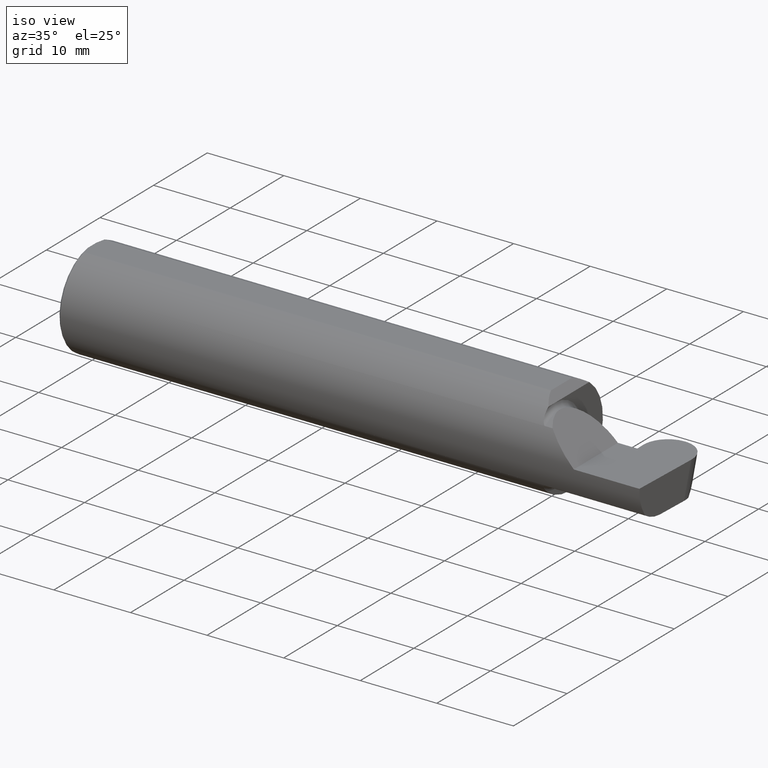
[diagram: clean part render]
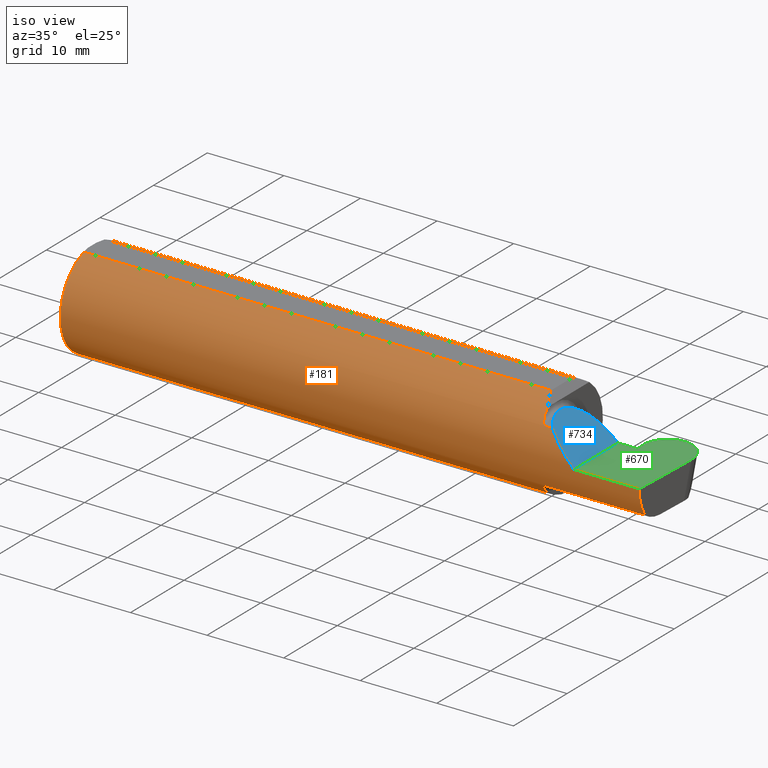
[diagram: same view with three faces highlighted in distinct colors, each labeled with its STEP entity id]
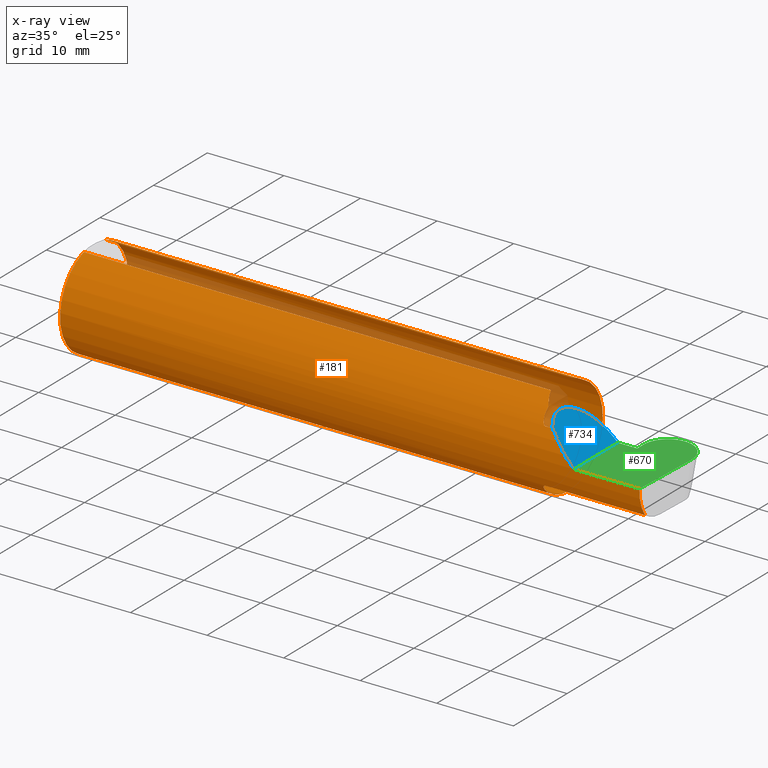
[diagram: x-ray of the same camera — body ghosted, the three highlighted faces saturated]
A machine part, iso view with three faces highlighted in distinct colors.
The next image is the same camera in x-ray (body ghosted, the three faces saturated) — at least one of them is partly hidden behind the body in this view.
Their STEP definitions:

[orange] entity #181 — the highlighted cylindrical surface (partial cylindrical patch) has radius 6.3462 mm, axis along (-1, -0, -0).
#2 = CARTESIAN_POINT ( 'NONE',  ( 2.464302603425053029, -0.2041009206016212163, -0.1441313430770041204 ) ) ;
#6 = DIRECTION ( 'NONE',  ( 0.000000000000000000, 1.000000000000000000, 0.000000000000000000 ) ) ;
#24 = EDGE_CURVE ( 'NONE', #767, #304, #321, .T. ) ;
#27 = CIRCLE ( 'NONE', #62, 0.2498499999999999888 ) ;
#28 = CARTESIAN_POINT ( 'NONE',  ( 2.450000000000000178, -0.1497498664440164717, 0.1999999999999981515 ) ) ;
#30 = VERTEX_POINT ( 'NONE', #54 ) ;
#31 = DIRECTION ( 'NONE',  ( 0.000000000000000000, 0.000000000000000000, -1.000000000000000000 ) ) ;
#35 = CARTESIAN_POINT ( 'NONE',  ( 2.600434159100402987, -0.2498499999999999610, 0.04956584089959698708 ) ) ;
#50 = ORIENTED_EDGE ( 'NONE', *, *, #24, .T. ) ;
#54 = CARTESIAN_POINT ( 'NONE',  ( 0.009999999999999927350, 0.000000000000000000, -0.2498499999999999888 ) ) ;
#57 = CARTESIAN_POINT ( 'NONE',  ( 2.475000000000000089, -0.2080850024789288044, 0.1382955322609670246 ) ) ;
#58 = ORIENTED_EDGE ( 'NONE', *, *, #268, .T. ) ;
#60 = CARTESIAN_POINT ( 'NONE',  ( 2.987107171508847081, -0.2498499999999999888, 0.000000000000000000 ) ) ;
#62 = AXIS2_PLACEMENT_3D ( 'NONE', #671, #351, #31 ) ;
#78 = B_SPLINE_CURVE_WITH_KNOTS ( 'NONE', 3,
 ( #101, #681, #224, #486, #361, #91, #801, #365, #550, #227, #417, #559, #104, #616 ),
 .UNSPECIFIED., .F., .F.,
 ( 4, 2, 2, 2, 2, 2, 4 ),
 ( 0.0003834465838148107459, 0.0008781406165086604390, 0.001372834649202510186, 0.001867528681896359717, 0.002114875698243289578, 0.002238549206416754183, 0.002362222714590218788 ),
 .UNSPECIFIED. ) ;
#81 = AXIS2_PLACEMENT_3D ( 'NONE', #209, #719, #6 ) ;
#82 = ORIENTED_EDGE ( 'NONE', *, *, #458, .T. ) ;
#89 = CARTESIAN_POINT ( 'NONE',  ( 2.420642670853159650, -0.1029056323555046087, 0.2293573291468382624 ) ) ;
#91 = CARTESIAN_POINT ( 'NONE',  ( 2.456159563508733878, -0.1933019864360847606, 0.1584298865564834624 ) ) ;
#97 = CARTESIAN_POINT ( 'NONE',  ( 2.650000000000000355, -0.2498499999999999610, 4.286263797015729199E-17 ) ) ;
#101 = CARTESIAN_POINT ( 'NONE',  ( 2.450000000000000178, -0.1616050818046600723, 0.1905487340154983222 ) ) ;
#104 = CARTESIAN_POINT ( 'NONE',  ( 2.473329956043142541, -0.2080850024798589493, 0.1382955322595677272 ) ) ;
#107 = EDGE_LOOP ( 'NONE', ( #409, #561, #50, #82, #461, #742, #526, #58, #563, #121, #617, #651, #161, #729, #763 ) ) ;
#108 = CARTESIAN_POINT ( 'NONE',  ( 2.450000000000000178, 0.1497498664440163885, 0.1999999999999982903 ) ) ;
#116 = EDGE_CURVE ( 'NONE', #356, #165, #162, .T. ) ;
#121 = ORIENTED_EDGE ( 'NONE', *, *, #402, .T. ) ;
#124 = CARTESIAN_POINT ( 'NONE',  ( 4.499279347985562423E-32, -0.2498499999999999610, 3.673940397442054938E-16 ) ) ;
#126 = CARTESIAN_POINT ( 'NONE',  ( 0.000000000000000000, 0.07650098038587520299, 0.2378499999999998671 ) ) ;
#128 = FACE_OUTER_BOUND ( 'NONE', #107, .T. ) ;
#131 = CARTESIAN_POINT ( 'NONE',  ( 2.451385488563270432, -0.1808287530430323642, -0.1728790649396289569 ) ) ;
#146 =( BOUNDED_CURVE ( )  B_SPLINE_CURVE ( 3, ( #751, #385, #821, #754 ),
 .UNSPECIFIED., .F., .T. ) 
 B_SPLINE_CURVE_WITH_KNOTS ( ( 4, 4 ),
 ( 0.3111857320071445554, 0.6427002007837623321 ),
 .UNSPECIFIED. ) 
 CURVE ( )  GEOMETRIC_REPRESENTATION_ITEM ( )  RATIONAL_B_SPLINE_CURVE ( ( 1.000000000000000000, 0.9908624633578575480, 0.9908624633578575480, 1.000000000000000000 ) ) 
 REPRESENTATION_ITEM ( '' )  );
#147 = CARTESIAN_POINT ( 'NONE',  ( 2.468863362722769406, -0.2068301641248768696, -0.1401678546132364700 ) ) ;
#148 = CYLINDRICAL_SURFACE ( 'NONE', #308, 0.2498499999999999888 ) ;
#161 = ORIENTED_EDGE ( 'NONE', *, *, #567, .T. ) ;
#162 = CIRCLE ( 'NONE', #81, 0.2498499999999999888 ) ;
#165 = VERTEX_POINT ( 'NONE', #271 ) ;
#174 = VECTOR ( 'NONE', #183, 39.37007874015748143 ) ;
#180 = CARTESIAN_POINT ( 'NONE',  ( 2.985913134503198840, -0.2355204011147991605, -0.09701513151466768792 ) ) ;
#181 = ADVANCED_FACE ( 'NONE', ( #128 ), #148, .T. ) ;
#182 = LINE ( 'NONE', #455, #775 ) ;
#183 = DIRECTION ( 'NONE',  ( -1.000000000000000000, -0.000000000000000000, -0.000000000000000000 ) ) ;
#184 =( BOUNDED_CURVE ( )  B_SPLINE_CURVE ( 3, ( #426, #35, #677, #554 ),
 .UNSPECIFIED., .F., .T. ) 
 B_SPLINE_CURVE_WITH_KNOTS ( ( 4, 4 ),
 ( 4.712388980384689674, 5.298966915116347209 ),
 .UNSPECIFIED. ) 
 CURVE ( )  GEOMETRIC_REPRESENTATION_ITEM ( )  RATIONAL_B_SPLINE_CURVE ( ( 1.000000000000000000, 0.9715321379117538569, 0.9715321379117538569, 1.000000000000000000 ) ) 
 REPRESENTATION_ITEM ( '' )  );
#188 = VECTOR ( 'NONE', #735, 39.37007874015748143 ) ;
#196 = CARTESIAN_POINT ( 'NONE',  ( 2.511704467739032332, -0.2080850024789289987, 0.1382955322609668025 ) ) ;
#202 = CIRCLE ( 'NONE', #418, 0.2498499999999999888 ) ;
#209 = CARTESIAN_POINT ( 'NONE',  ( 2.450000000000000178, 0.000000000000000000, 0.000000000000000000 ) ) ;
#210 = VERTEX_POINT ( 'NONE', #655 ) ;
#215 = CARTESIAN_POINT ( 'NONE',  ( 0.000000000000000000, 0.000000000000000000, 0.000000000000000000 ) ) ;
#219 = CARTESIAN_POINT ( 'NONE',  ( 2.986150208451177512, -0.2080850024789288599, -0.1382955322609668025 ) ) ;
#224 = CARTESIAN_POINT ( 'NONE',  ( 2.450367168219774516, -0.1713400252854600514, 0.1819601557798509184 ) ) ;
#227 = CARTESIAN_POINT ( 'NONE',  ( 2.467647060162629025, -0.2062109266231180738, 0.1410799729252291135 ) ) ;
#230 = CARTESIAN_POINT ( 'NONE',  ( 2.433375685911487452, -0.1275470899297185268, 0.2166243140885105445 ) ) ;
#233 = CARTESIAN_POINT ( 'NONE',  ( 2.412149999999998240, -0.07650098038587530014, 0.2378499999999998948 ) ) ;
#259 = CARTESIAN_POINT ( 'NONE',  ( 2.462579853086619863, -0.2024300470081733527, -0.1464774911482687736 ) ) ;
#260 = VERTEX_POINT ( 'NONE', #219 ) ;
#267 = AXIS2_PLACEMENT_3D ( 'NONE', #657, #709, #324 ) ;
#268 = EDGE_CURVE ( 'NONE', #356, #210, #474, .T. ) ;
#271 = CARTESIAN_POINT ( 'NONE',  ( 2.450000000000000178, -0.1616050818046600723, 0.1905487340154983222 ) ) ;
#289 = EDGE_CURVE ( 'NONE', #30, #608, #27, .T. ) ;
#299 = CARTESIAN_POINT ( 'NONE',  ( 2.412149999999998240, 0.07650098038587530014, 0.2378499999999998948 ) ) ;
#301 = EDGE_CURVE ( 'NONE', #636, #825, #796, .T. ) ;
#304 = VERTEX_POINT ( 'NONE', #97 ) ;
#308 = AXIS2_PLACEMENT_3D ( 'NONE', #215, #600, #386 ) ;
#321 = LINE ( 'NONE', #124, #174 ) ;
#322 = CARTESIAN_POINT ( 'NONE',  ( 2.986150208451177512, -0.2080850024789288599, -0.1382955322609668025 ) ) ;
#324 = DIRECTION ( 'NONE',  ( 0.000000000000000000, 1.000000000000000000, 0.000000000000000000 ) ) ;
#334 = CARTESIAN_POINT ( 'NONE',  ( 2.467611663768900510, -0.2061921161193829288, -0.1411075319999378908 ) ) ;
#340 = VERTEX_POINT ( 'NONE', #299 ) ;
#348 = CARTESIAN_POINT ( 'NONE',  ( 2.450000000000000178, -0.1497498664440164717, 0.1999999999999981515 ) ) ;
#351 = DIRECTION ( 'NONE',  ( 1.000000000000000000, 0.000000000000000000, 0.000000000000000000 ) ) ;
#356 = VERTEX_POINT ( 'NONE', #28 ) ;
#361 = CARTESIAN_POINT ( 'NONE',  ( 2.452968662030529323, -0.1849684355203375097, 0.1680843977756270868 ) ) ;
#365 = CARTESIAN_POINT ( 'NONE',  ( 2.462616400345755796, -0.2024684335577100203, 0.1464246884265641424 ) ) ;
#375 = LINE ( 'NONE', #126, #631 ) ;
#385 = CARTESIAN_POINT ( 'NONE',  ( 2.420642670853159650, 0.1029056323555044422, 0.2293573291468383457 ) ) ;
#386 = DIRECTION ( 'NONE',  ( 0.000000000000000000, 0.000000000000000000, 1.000000000000000000 ) ) ;
#394 = CARTESIAN_POINT ( 'NONE',  ( 2.473318040126429640, -0.2080850024789288599, -0.1382955322609669413 ) ) ;
#396 = VERTEX_POINT ( 'NONE', #574 ) ;
#402 = EDGE_CURVE ( 'NONE', #396, #30, #202, .T. ) ;
#403 = CARTESIAN_POINT ( 'NONE',  ( 2.450000000000000178, -0.1616050818046600723, -0.1905487340154983222 ) ) ;
#409 = ORIENTED_EDGE ( 'NONE', *, *, #795, .F. ) ;
#417 = CARTESIAN_POINT ( 'NONE',  ( 2.468876997637615478, -0.2068363917296598131, 0.1401586554522232797 ) ) ;
#418 = AXIS2_PLACEMENT_3D ( 'NONE', #820, #623, #434 ) ;
#426 = CARTESIAN_POINT ( 'NONE',  ( 2.650000000000000355, -0.2498499999999999610, 4.286263797015729199E-17 ) ) ;
#434 = DIRECTION ( 'NONE',  ( 0.000000000000000000, 0.000000000000000000, -1.000000000000000000 ) ) ;
#455 = CARTESIAN_POINT ( 'NONE',  ( 0.000000000000000000, -0.07650098038587520299, 0.2378499999999998671 ) ) ;
#457 = DIRECTION ( 'NONE',  ( -1.000000000000000000, -0.000000000000000000, -0.000000000000000000 ) ) ;
#458 = EDGE_CURVE ( 'NONE', #304, #825, #184, .T. ) ;
#461 = ORIENTED_EDGE ( 'NONE', *, *, #301, .F. ) ;
#467 = CARTESIAN_POINT ( 'NONE',  ( 2.475000000000000089, -0.2080850024789288599, -0.1382955322609669968 ) ) ;
#472 = CARTESIAN_POINT ( 'NONE',  ( 2.450000000000000178, -0.1616050818046600723, -0.1905487340154983222 ) ) ;
#474 =( BOUNDED_CURVE ( )  B_SPLINE_CURVE ( 3, ( #348, #230, #89, #233 ),
 .UNSPECIFIED., .F., .T. ) 
 B_SPLINE_CURVE_WITH_KNOTS ( ( 4, 4 ),
 ( 5.640485106395822790, 5.971999575172441510 ),
 .UNSPECIFIED. ) 
 CURVE ( )  GEOMETRIC_REPRESENTATION_ITEM ( )  RATIONAL_B_SPLINE_CURVE ( ( 1.000000000000000000, 0.9908624633578575480, 0.9908624633578575480, 1.000000000000000000 ) ) 
 REPRESENTATION_ITEM ( '' )  );
#478 = B_SPLINE_CURVE_WITH_KNOTS ( 'NONE', 3,
 ( #771, #394, #535, #147, #334, #2, #259, #718, #524, #131, #595, #403 ),
 .UNSPECIFIED., .F., .F.,
 ( 4, 2, 2, 2, 2, 4 ),
 ( 1.964491429112497708E-07, 0.0001260981470478306156, 0.0002519998449527499499, 0.0005038032407626173497, 0.001007410032382352041, 0.002014623615621819689 ),
 .UNSPECIFIED. ) ;
#485 = EDGE_CURVE ( 'NONE', #165, #636, #78, .T. ) ;
#486 = CARTESIAN_POINT ( 'NONE',  ( 2.451849548162864600, -0.1805300287242671831, 0.1728462070311783672 ) ) ;
#524 = CARTESIAN_POINT ( 'NONE',  ( 2.456147634408388125, -0.1932733126899458809, -0.1584637047788200748 ) ) ;
#526 = ORIENTED_EDGE ( 'NONE', *, *, #116, .F. ) ;
#535 = CARTESIAN_POINT ( 'NONE',  ( 2.471700027347579542, -0.2077785947292765945, -0.1387580622202828629 ) ) ;
#550 = CARTESIAN_POINT ( 'NONE',  ( 2.464343523383979662, -0.2041337200786082218, 0.1440846171672513221 ) ) ;
#554 = CARTESIAN_POINT ( 'NONE',  ( 2.511704467739032332, -0.2080850024789289987, 0.1382955322609668025 ) ) ;
#559 = CARTESIAN_POINT ( 'NONE',  ( 2.471718393013770054, -0.2077830475237239793, 0.1387513848711940667 ) ) ;
#561 = ORIENTED_EDGE ( 'NONE', *, *, #814, .T. ) ;
#563 = ORIENTED_EDGE ( 'NONE', *, *, #607, .F. ) ;
#567 = EDGE_CURVE ( 'NONE', #340, #612, #146, .T. ) ;
#568 = CIRCLE ( 'NONE', #267, 0.2498499999999999888 ) ;
#573 = DIRECTION ( 'NONE',  ( -1.000000000000000000, -4.000085335087457591E-16, -0.000000000000000000 ) ) ;
#574 = CARTESIAN_POINT ( 'NONE',  ( 0.009999999999999927350, -0.07650098038587520299, 0.2378499999999998671 ) ) ;
#595 = CARTESIAN_POINT ( 'NONE',  ( 2.450000000000000622, -0.1716188362992551175, -0.1820560320165483525 ) ) ;
#600 = DIRECTION ( 'NONE',  ( -1.000000000000000000, -0.000000000000000000, -0.000000000000000000 ) ) ;
#607 = EDGE_CURVE ( 'NONE', #396, #210, #182, .T. ) ;
#608 = VERTEX_POINT ( 'NONE', #689 ) ;
#612 = VERTEX_POINT ( 'NONE', #108 ) ;
#616 = CARTESIAN_POINT ( 'NONE',  ( 2.475000000000000089, -0.2080850024789288044, 0.1382955322609670246 ) ) ;
#617 = ORIENTED_EDGE ( 'NONE', *, *, #289, .T. ) ;
#623 = DIRECTION ( 'NONE',  ( 1.000000000000000000, 0.000000000000000000, 0.000000000000000000 ) ) ;
#629 = DIRECTION ( 'NONE',  ( 1.000000000000000000, 0.000000000000000000, 0.000000000000000000 ) ) ;
#631 = VECTOR ( 'NONE', #457, 39.37007874015748143 ) ;
#632 = LINE ( 'NONE', #758, #664 ) ;
#636 = VERTEX_POINT ( 'NONE', #57 ) ;
#651 = ORIENTED_EDGE ( 'NONE', *, *, #752, .F. ) ;
#655 = CARTESIAN_POINT ( 'NONE',  ( 2.412149999999998240, -0.07650098038587530014, 0.2378499999999998948 ) ) ;
#657 = CARTESIAN_POINT ( 'NONE',  ( 2.450000000000000178, 0.000000000000000000, 0.000000000000000000 ) ) ;
#664 = VECTOR ( 'NONE', #573, 39.37007874015748143 ) ;
#665 = VERTEX_POINT ( 'NONE', #472 ) ;
#671 = CARTESIAN_POINT ( 'NONE',  ( 0.009999999999999927350, 0.000000000000000000, 0.000000000000000000 ) ) ;
#673 = VERTEX_POINT ( 'NONE', #467 ) ;
#674 = EDGE_CURVE ( 'NONE', #665, #612, #568, .T. ) ;
#677 = CARTESIAN_POINT ( 'NONE',  ( 2.552984868485332015, -0.2355204011147991883, 0.09701513151466749363 ) ) ;
#681 = CARTESIAN_POINT ( 'NONE',  ( 2.449999999999999734, -0.1665641037263005941, 0.1863429692936364734 ) ) ;
#687 = EDGE_CURVE ( 'NONE', #673, #665, #478, .T. ) ;
#689 = CARTESIAN_POINT ( 'NONE',  ( 0.009999999999999927350, 0.07650098038587520299, 0.2378499999999998671 ) ) ;
#703 = CARTESIAN_POINT ( 'NONE',  ( 2.987107171508847081, -0.2498499999999999888, 0.000000000000000000 ) ) ;
#709 = DIRECTION ( 'NONE',  ( 1.000000000000000000, 4.000085335087457591E-16, 0.000000000000000000 ) ) ;
#718 = CARTESIAN_POINT ( 'NONE',  ( 2.458176740666626170, -0.1972027065478071661, -0.1535263573771916967 ) ) ;
#719 = DIRECTION ( 'NONE',  ( 1.000000000000000000, 4.000085335087457591E-16, 0.000000000000000000 ) ) ;
#720 =( BOUNDED_CURVE ( )  B_SPLINE_CURVE ( 3, ( #322, #180, #826, #60 ),
 .UNSPECIFIED., .F., .T. ) 
 B_SPLINE_CURVE_WITH_KNOTS ( ( 4, 4 ),
 ( 6.160376845738950280, 6.746954780470608704 ),
 .UNSPECIFIED. ) 
 CURVE ( )  GEOMETRIC_REPRESENTATION_ITEM ( )  RATIONAL_B_SPLINE_CURVE ( ( 1.000000000000000000, 0.9715321379117538569, 0.9715321379117538569, 1.000000000000000000 ) ) 
 REPRESENTATION_ITEM ( '' )  );
#729 = ORIENTED_EDGE ( 'NONE', *, *, #674, .F. ) ;
#735 = DIRECTION ( 'NONE',  ( 1.000000000000000000, 4.000085335087457591E-16, 0.000000000000000000 ) ) ;
#742 = ORIENTED_EDGE ( 'NONE', *, *, #485, .F. ) ;
#751 = CARTESIAN_POINT ( 'NONE',  ( 2.412149999999998240, 0.07650098038587530014, 0.2378499999999998948 ) ) ;
#752 = EDGE_CURVE ( 'NONE', #340, #608, #375, .T. ) ;
#754 = CARTESIAN_POINT ( 'NONE',  ( 2.450000000000000178, 0.1497498664440163885, 0.1999999999999982903 ) ) ;
#758 = CARTESIAN_POINT ( 'NONE',  ( 2.611894750000000265, -0.2080850024789289987, -0.1382955322609668025 ) ) ;
#763 = ORIENTED_EDGE ( 'NONE', *, *, #687, .F. ) ;
#767 = VERTEX_POINT ( 'NONE', #703 ) ;
#771 = CARTESIAN_POINT ( 'NONE',  ( 2.475000000000000089, -0.2080850024789288599, -0.1382955322609669968 ) ) ;
#775 = VECTOR ( 'NONE', #629, 39.37007874015748143 ) ;
#795 = EDGE_CURVE ( 'NONE', #260, #673, #632, .T. ) ;
#796 = LINE ( 'NONE', #803, #188 ) ;
#801 = CARTESIAN_POINT ( 'NONE',  ( 2.458182335268385366, -0.1972192205116129748, 0.1535061413537213149 ) ) ;
#803 = CARTESIAN_POINT ( 'NONE',  ( 2.611894750000000265, -0.2080850024789289987, 0.1382955322609668025 ) ) ;
#814 = EDGE_CURVE ( 'NONE', #260, #767, #720, .T. ) ;
#820 = CARTESIAN_POINT ( 'NONE',  ( 0.009999999999999927350, 0.000000000000000000, 0.000000000000000000 ) ) ;
#821 = CARTESIAN_POINT ( 'NONE',  ( 2.433375685911487007, 0.1275470899297182492, 0.2166243140885106833 ) ) ;
#825 = VERTEX_POINT ( 'NONE', #196 ) ;
#826 = CARTESIAN_POINT ( 'NONE',  ( 2.986241469175252128, -0.2498499999999999610, -0.04956584089959703565 ) ) ;

[blue] entity #734 — the highlighted planar face has unit normal (-0.7071, 0, -0.7071).
#1 = DIRECTION ( 'NONE',  ( -0.7071067811865439090, 0.000000000000000000, -0.7071067811865511255 ) ) ;
#35 = CARTESIAN_POINT ( 'NONE',  ( 2.600434159100402987, -0.2498499999999999610, 0.04956584089959698708 ) ) ;
#47 = DIRECTION ( 'NONE',  ( -0.7071067811865511255, 0.000000000000000000, 0.7071067811865439090 ) ) ;
#93 = EDGE_CURVE ( 'NONE', #304, #699, #532, .T. ) ;
#97 = CARTESIAN_POINT ( 'NONE',  ( 2.650000000000000355, -0.2498499999999999610, 4.286263797015729199E-17 ) ) ;
#112 = CARTESIAN_POINT ( 'NONE',  ( 2.475000000000000089, -0.1008500000000001617, 0.1749999999999984346 ) ) ;
#136 = PLANE ( 'NONE',  #678 ) ;
#184 =( BOUNDED_CURVE ( )  B_SPLINE_CURVE ( 3, ( #426, #35, #677, #554 ),
 .UNSPECIFIED., .F., .T. ) 
 B_SPLINE_CURVE_WITH_KNOTS ( ( 4, 4 ),
 ( 4.712388980384689674, 5.298966915116347209 ),
 .UNSPECIFIED. ) 
 CURVE ( )  GEOMETRIC_REPRESENTATION_ITEM ( )  RATIONAL_B_SPLINE_CURVE ( ( 1.000000000000000000, 0.9715321379117538569, 0.9715321379117538569, 1.000000000000000000 ) ) 
 REPRESENTATION_ITEM ( '' )  );
#187 = CARTESIAN_POINT ( 'NONE',  ( 2.650000000000000355, -0.2500000000000000555, 4.286263797015729199E-17 ) ) ;
#196 = CARTESIAN_POINT ( 'NONE',  ( 2.511704467739032332, -0.2080850024789289987, 0.1382955322609668025 ) ) ;
#199 = EDGE_LOOP ( 'NONE', ( #593, #446, #668, #501 ) ) ;
#291 = CARTESIAN_POINT ( 'NONE',  ( 2.547487373415291412, 0.07414999999999992430, 0.1025126265847084162 ) ) ;
#292 =( BOUNDED_CURVE ( )  B_SPLINE_CURVE ( 3, ( #745, #804, #291, #294 ),
 .UNSPECIFIED., .F., .T. ) 
 B_SPLINE_CURVE_WITH_KNOTS ( ( 4, 4 ),
 ( 1.948906882769498299E-17, 1.570796326794897002 ),
 .UNSPECIFIED. ) 
 CURVE ( )  GEOMETRIC_REPRESENTATION_ITEM ( )  RATIONAL_B_SPLINE_CURVE ( ( 1.000000000000000000, 0.8047378541243649375, 0.8047378541243649375, 1.000000000000000000 ) ) 
 REPRESENTATION_ITEM ( '' )  );
#294 = CARTESIAN_POINT ( 'NONE',  ( 2.650000000000000355, 0.07414999999999984104, 4.286263797015729199E-17 ) ) ;
#304 = VERTEX_POINT ( 'NONE', #97 ) ;
#328 = CARTESIAN_POINT ( 'NONE',  ( 2.650000000000000355, 0.07414999999999984104, 4.286263797015729199E-17 ) ) ;
#384 = CARTESIAN_POINT ( 'NONE',  ( 2.487690731615566087, -0.1771157075472510056, 0.1623092683844330752 ) ) ;
#426 = CARTESIAN_POINT ( 'NONE',  ( 2.650000000000000355, -0.2498499999999999610, 4.286263797015729199E-17 ) ) ;
#437 = EDGE_CURVE ( 'NONE', #822, #699, #292, .T. ) ;
#446 = ORIENTED_EDGE ( 'NONE', *, *, #769, .F. ) ;
#447 = VECTOR ( 'NONE', #644, 39.37007874015748143 ) ;
#458 = EDGE_CURVE ( 'NONE', #304, #825, #184, .T. ) ;
#501 = ORIENTED_EDGE ( 'NONE', *, *, #93, .T. ) ;
#521 = CARTESIAN_POINT ( 'NONE',  ( 2.475000000000000089, -0.1008500000000001617, 0.1749999999999984346 ) ) ;
#532 = LINE ( 'NONE', #777, #447 ) ;
#554 = CARTESIAN_POINT ( 'NONE',  ( 2.511704467739032332, -0.2080850024789289987, 0.1382955322609668025 ) ) ;
#583 = CARTESIAN_POINT ( 'NONE',  ( 2.511704467739032332, -0.2080850024789289987, 0.1382955322609668025 ) ) ;
#593 = ORIENTED_EDGE ( 'NONE', *, *, #437, .F. ) ;
#637 = CARTESIAN_POINT ( 'NONE',  ( 2.474999999999998757, -0.1400387324517232412, 0.1750000000000000167 ) ) ;
#644 = DIRECTION ( 'NONE',  ( -0.000000000000000000, 1.000000000000000000, -0.000000000000000000 ) ) ;
#668 = ORIENTED_EDGE ( 'NONE', *, *, #458, .F. ) ;
#677 = CARTESIAN_POINT ( 'NONE',  ( 2.552984868485332015, -0.2355204011147991883, 0.09701513151466749363 ) ) ;
#678 = AXIS2_PLACEMENT_3D ( 'NONE', #187, #1, #47 ) ;
#696 =( BOUNDED_CURVE ( )  B_SPLINE_CURVE ( 3, ( #583, #384, #637, #112 ),
 .UNSPECIFIED., .F., .T. ) 
 B_SPLINE_CURVE_WITH_KNOTS ( ( 4, 4 ),
 ( 5.623622464215681127, 6.283185307179586232 ),
 .UNSPECIFIED. ) 
 CURVE ( )  GEOMETRIC_REPRESENTATION_ITEM ( )  RATIONAL_B_SPLINE_CURVE ( ( 1.000000000000000000, 0.9640754331822831702, 0.9640754331822831702, 1.000000000000000000 ) ) 
 REPRESENTATION_ITEM ( '' )  );
#699 = VERTEX_POINT ( 'NONE', #328 ) ;
#713 = FACE_OUTER_BOUND ( 'NONE', #199, .T. ) ;
#734 = ADVANCED_FACE ( 'NONE', ( #713 ), #136, .F. ) ;
#745 = CARTESIAN_POINT ( 'NONE',  ( 2.475000000000000089, -0.1008500000000001617, 0.1749999999999984346 ) ) ;
#769 = EDGE_CURVE ( 'NONE', #825, #822, #696, .T. ) ;
#777 = CARTESIAN_POINT ( 'NONE',  ( 2.650000000000000355, -0.2500000000000000555, 4.286263797015729199E-17 ) ) ;
#804 = CARTESIAN_POINT ( 'NONE',  ( 2.474999999999998757, 0.001662626584708252033, 0.1750000000000000444 ) ) ;
#822 = VERTEX_POINT ( 'NONE', #521 ) ;
#825 = VERTEX_POINT ( 'NONE', #196 ) ;

[green] entity #670 — the highlighted planar face has unit normal (-0, 0, -1).
#11 = LINE ( 'NONE', #269, #489 ) ;
#24 = EDGE_CURVE ( 'NONE', #767, #304, #321, .T. ) ;
#25 = DIRECTION ( 'NONE',  ( -4.000085335087458577E-16, 1.000000000000000000, 4.898691701931117728E-32 ) ) ;
#38 = LINE ( 'NONE', #562, #506 ) ;
#61 = CARTESIAN_POINT ( 'NONE',  ( 3.000000000000000444, -0.2500000000000000555, 0.000000000000000000 ) ) ;
#77 = DIRECTION ( 'NONE',  ( -0.03489949670249543195, -0.9993908270190959842, 0.000000000000000000 ) ) ;
#93 = EDGE_CURVE ( 'NONE', #304, #699, #532, .T. ) ;
#97 = CARTESIAN_POINT ( 'NONE',  ( 2.650000000000000355, -0.2498499999999999610, 4.286263797015729199E-17 ) ) ;
#102 = VERTEX_POINT ( 'NONE', #325 ) ;
#106 = CARTESIAN_POINT ( 'NONE',  ( 2.750367999175829414, 0.07414999999999984104, 0.000000000000000000 ) ) ;
#110 = ORIENTED_EDGE ( 'NONE', *, *, #93, .F. ) ;
#113 = CARTESIAN_POINT ( 'NONE',  ( 2.999793206199442785, 0.1134305025558126345, 0.000000000000000000 ) ) ;
#124 = CARTESIAN_POINT ( 'NONE',  ( 4.499279347985562423E-32, -0.2498499999999999610, 3.673940397442054938E-16 ) ) ;
#125 = ORIENTED_EDGE ( 'NONE', *, *, #419, .F. ) ;
#129 = VERTEX_POINT ( 'NONE', #590 ) ;
#158 = ORIENTED_EDGE ( 'NONE', *, *, #313, .F. ) ;
#166 = CARTESIAN_POINT ( 'NONE',  ( 2.748866015324560319, 0.1171611899918090366, 0.000000000000000000 ) ) ;
#170 = LINE ( 'NONE', #429, #397 ) ;
#174 = VECTOR ( 'NONE', #183, 39.37007874015748143 ) ;
#183 = DIRECTION ( 'NONE',  ( -1.000000000000000000, -0.000000000000000000, -0.000000000000000000 ) ) ;
#190 = ORIENTED_EDGE ( 'NONE', *, *, #694, .F. ) ;
#223 = CARTESIAN_POINT ( 'NONE',  ( 2.748789500000000441, 0.1196039745734777116, 3.076441347372055469E-17 ) ) ;
#226 = CARTESIAN_POINT ( 'NONE',  ( 2.748789500000000441, 0.1943187064415508314, 3.216169852589703280E-17 ) ) ;
#236 = AXIS2_PLACEMENT_3D ( 'NONE', #61, #649, #263 ) ;
#238 = VERTEX_POINT ( 'NONE', #715 ) ;
#246 = CARTESIAN_POINT ( 'NONE',  ( 3.002511784637379222, 0.1912804032740405558, -7.160714913043396685E-18 ) ) ;
#253 = EDGE_LOOP ( 'NONE', ( #125, #750, #387, #427, #794, #158, #110, #533, #190, #401 ) ) ;
#263 = DIRECTION ( 'NONE',  ( -1.000000000000000000, 0.000000000000000000, 1.224646799147351975E-16 ) ) ;
#265 = VERTEX_POINT ( 'NONE', #494 ) ;
#269 = CARTESIAN_POINT ( 'NONE',  ( 2.999923484675441010, 0.1171611899918090643, 0.000000000000000000 ) ) ;
#282 = DIRECTION ( 'NONE',  ( 1.000000000000000000, -0.000000000000000000, -0.000000000000000000 ) ) ;
#283 = VECTOR ( 'NONE', #358, 39.37007874015748143 ) ;
#300 = CARTESIAN_POINT ( 'NONE',  ( 2.999793206199442785, 0.1134305025558126345, 0.000000000000000000 ) ) ;
#304 = VERTEX_POINT ( 'NONE', #97 ) ;
#313 = EDGE_CURVE ( 'NONE', #699, #102, #609, .T. ) ;
#316 = EDGE_CURVE ( 'NONE', #238, #129, #404, .T. ) ;
#321 = LINE ( 'NONE', #124, #174 ) ;
#325 = CARTESIAN_POINT ( 'NONE',  ( 2.739326706053758276, 0.07414999999999984104, 0.000000000000000000 ) ) ;
#328 = CARTESIAN_POINT ( 'NONE',  ( 2.650000000000000355, 0.07414999999999984104, 4.286263797015729199E-17 ) ) ;
#332 = EDGE_CURVE ( 'NONE', #480, #808, #490, .T. ) ;
#350 = EDGE_CURVE ( 'NONE', #808, #129, #38, .T. ) ;
#358 = DIRECTION ( 'NONE',  ( 1.000000000000000000, 4.000085335087457591E-16, 0.000000000000000000 ) ) ;
#363 = EDGE_CURVE ( 'NONE', #102, #480, #806, .T. ) ;
#387 = ORIENTED_EDGE ( 'NONE', *, *, #350, .F. ) ;
#397 = VECTOR ( 'NONE', #807, 39.37007874015748143 ) ;
#401 = ORIENTED_EDGE ( 'NONE', *, *, #411, .T. ) ;
#404 =( BOUNDED_CURVE ( )  B_SPLINE_CURVE ( 3, ( #556, #416, #226, #223 ),
 .UNSPECIFIED., .F., .F. ) 
 B_SPLINE_CURVE_WITH_KNOTS ( ( 4, 4 ),
 ( -8.881784197001252323E-16, 1.570796326794896780 ),
 .UNSPECIFIED. ) 
 CURVE ( )  GEOMETRIC_REPRESENTATION_ITEM ( )  RATIONAL_B_SPLINE_CURVE ( ( 1.000000000000000000, 0.8047378541243646044, 0.8047378541243646044, 1.000000000000000000 ) ) 
 REPRESENTATION_ITEM ( '' )  );
#408 = DIRECTION ( 'NONE',  ( -0.03489949670249486990, 0.9993908270190959842, -0.000000000000000000 ) ) ;
#411 = EDGE_CURVE ( 'NONE', #496, #265, #584, .T. ) ;
#416 = CARTESIAN_POINT ( 'NONE',  ( 2.799820610884365735, 0.2471499999999999808, 2.591218986574987484E-17 ) ) ;
#419 = EDGE_CURVE ( 'NONE', #238, #265, #170, .T. ) ;
#427 = ORIENTED_EDGE ( 'NONE', *, *, #332, .F. ) ;
#429 = CARTESIAN_POINT ( 'NONE',  ( -0.002039370078740339320, 0.2471499999999999808, 0.000000000000000000 ) ) ;
#447 = VECTOR ( 'NONE', #644, 39.37007874015748143 ) ;
#480 = VERTEX_POINT ( 'NONE', #106 ) ;
#489 = VECTOR ( 'NONE', #77, 39.37007874015748143 ) ;
#490 = LINE ( 'NONE', #166, #747 ) ;
#494 = CARTESIAN_POINT ( 'NONE',  ( 2.875201260087795863, 0.2471499999999999808, 0.000000000000000000 ) ) ;
#496 = VERTEX_POINT ( 'NONE', #300 ) ;
#506 = VECTOR ( 'NONE', #25, 39.37007874015748143 ) ;
#509 = CARTESIAN_POINT ( 'NONE',  ( 2.748789500000000441, 0.1193523022059226335, 0.000000000000000000 ) ) ;
#532 = LINE ( 'NONE', #777, #447 ) ;
#533 = ORIENTED_EDGE ( 'NONE', *, *, #24, .F. ) ;
#556 = CARTESIAN_POINT ( 'NONE',  ( 2.871989500000000195, 0.2471499999999999808, 0.000000000000000000 ) ) ;
#562 = CARTESIAN_POINT ( 'NONE',  ( 2.748789500000000441, -0.2500000000000001110, 3.076441347372053620E-17 ) ) ;
#584 =( BOUNDED_CURVE ( )  B_SPLINE_CURVE ( 3, ( #113, #246, #634, #811 ),
 .UNSPECIFIED., .F., .T. ) 
 B_SPLINE_CURVE_WITH_KNOTS ( ( 4, 4 ),
 ( 1.637964922114649058, 3.237953570749844356 ),
 .UNSPECIFIED. ) 
 CURVE ( )  GEOMETRIC_REPRESENTATION_ITEM ( )  RATIONAL_B_SPLINE_CURVE ( ( 1.000000000000000000, 0.7978071872141900833, 0.7978071872141900833, 1.000000000000000000 ) ) 
 REPRESENTATION_ITEM ( '' )  );
#590 = CARTESIAN_POINT ( 'NONE',  ( 2.748789500000000441, 0.1196039745734777116, 3.076441347372055469E-17 ) ) ;
#606 = CARTESIAN_POINT ( 'NONE',  ( 2.750367999175829414, 0.07414999999999984104, 0.000000000000000000 ) ) ;
#609 = LINE ( 'NONE', #728, #283 ) ;
#634 = CARTESIAN_POINT ( 'NONE',  ( 2.950455787437228139, 0.2471500000000003971, -7.856938782845208821E-19 ) ) ;
#638 = FACE_OUTER_BOUND ( 'NONE', #253, .T. ) ;
#644 = DIRECTION ( 'NONE',  ( -0.000000000000000000, 1.000000000000000000, -0.000000000000000000 ) ) ;
#649 = DIRECTION ( 'NONE',  ( -1.224646799147351975E-16, 0.000000000000000000, -1.000000000000000000 ) ) ;
#670 = ADVANCED_FACE ( 'NONE', ( #638 ), #783, .F. ) ;
#694 = EDGE_CURVE ( 'NONE', #496, #767, #11, .T. ) ;
#699 = VERTEX_POINT ( 'NONE', #328 ) ;
#703 = CARTESIAN_POINT ( 'NONE',  ( 2.987107171508847081, -0.2498499999999999888, 0.000000000000000000 ) ) ;
#715 = CARTESIAN_POINT ( 'NONE',  ( 2.871989500000000195, 0.2471499999999999808, 0.000000000000000000 ) ) ;
#728 = CARTESIAN_POINT ( 'NONE',  ( 2.450000000000000178, 0.07414999999999985492, 6.735557395310436353E-17 ) ) ;
#747 = VECTOR ( 'NONE', #408, 39.37007874015748143 ) ;
#750 = ORIENTED_EDGE ( 'NONE', *, *, #316, .T. ) ;
#767 = VERTEX_POINT ( 'NONE', #703 ) ;
#777 = CARTESIAN_POINT ( 'NONE',  ( 2.650000000000000355, -0.2500000000000000555, 4.286263797015729199E-17 ) ) ;
#783 = PLANE ( 'NONE',  #236 ) ;
#794 = ORIENTED_EDGE ( 'NONE', *, *, #363, .F. ) ;
#806 = LINE ( 'NONE', #606, #815 ) ;
#807 = DIRECTION ( 'NONE',  ( 1.000000000000000000, -0.000000000000000000, -0.000000000000000000 ) ) ;
#808 = VERTEX_POINT ( 'NONE', #509 ) ;
#811 = CARTESIAN_POINT ( 'NONE',  ( 2.875201260087795863, 0.2471499999999999808, 0.000000000000000000 ) ) ;
#815 = VECTOR ( 'NONE', #282, 39.37007874015748143 ) ;